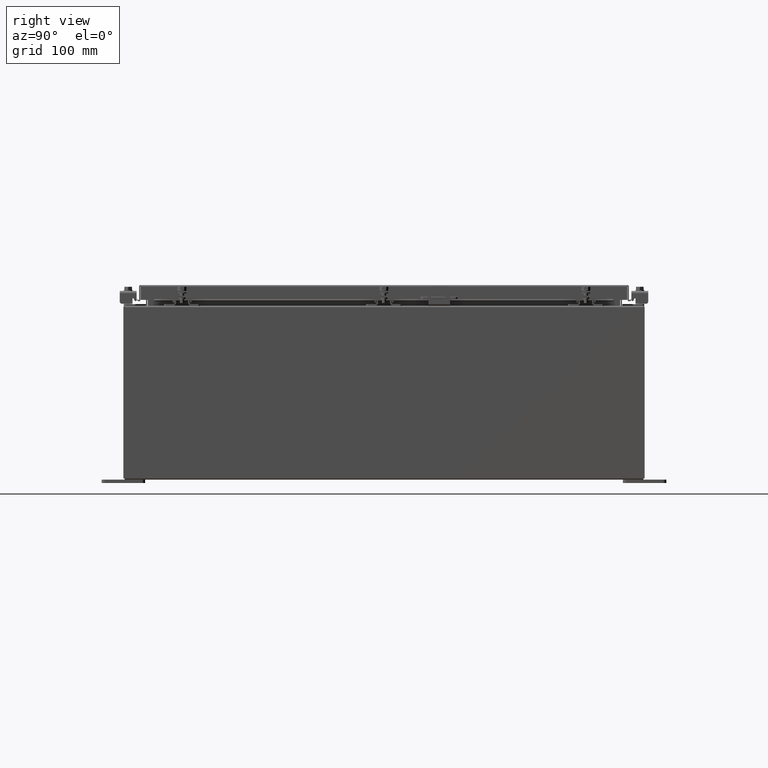
[diagram: clean part render]
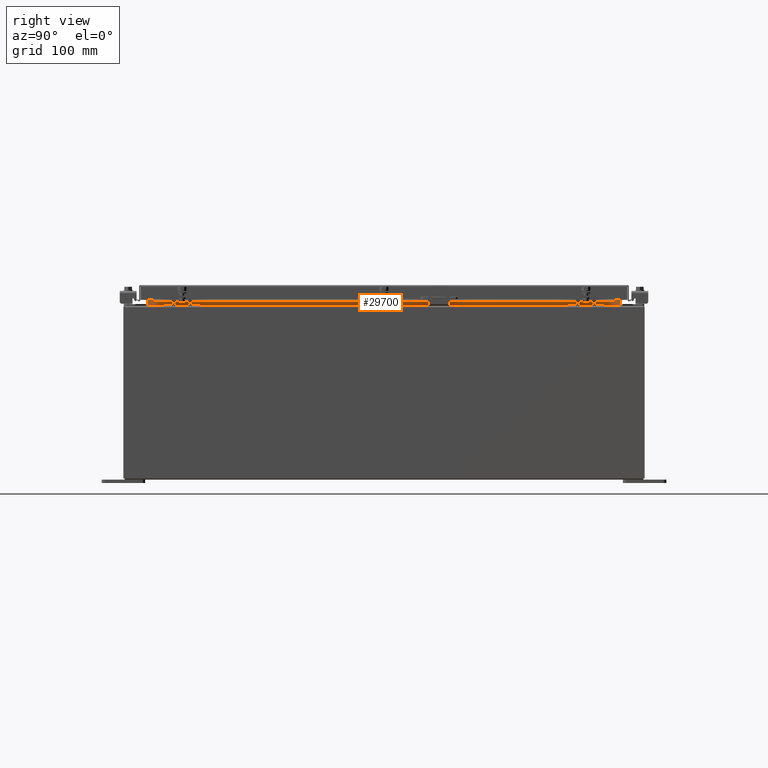
[diagram: same view with one face highlighted and labeled with its STEP entity id]
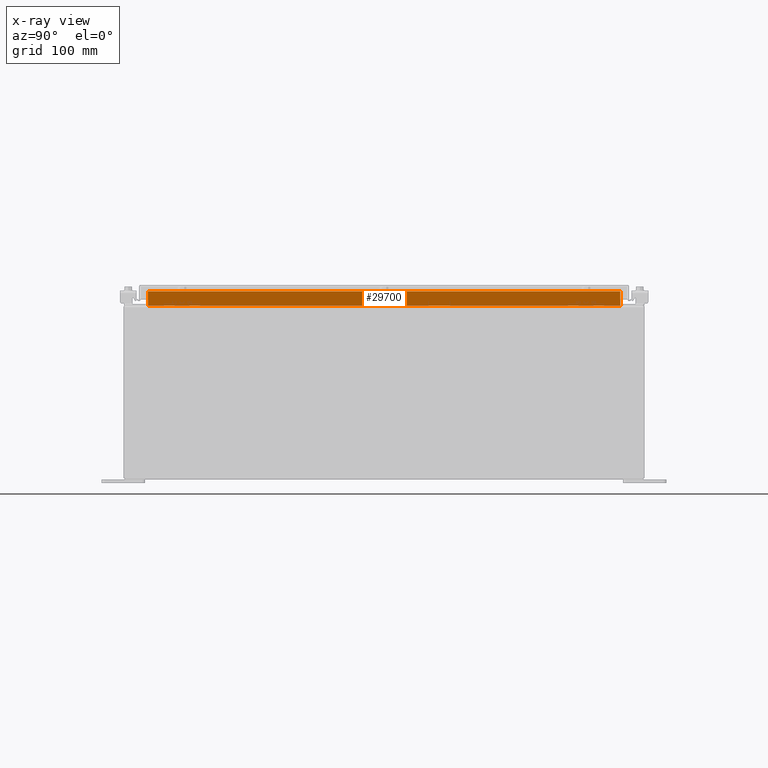
[diagram: x-ray of the same camera — body ghosted, the highlighted face saturated]
A machine part, right view. The second image highlights one B-rep face of the part: STEP entity #29700.
The next image is the same camera in x-ray: the body ghosted, the highlighted face saturated — about 0% of this face is hidden behind the body in this view.
In plain terms, the highlighted planar face has unit normal (1, 0, -0).
Its self-contained STEP definition (entity closure, byte-faithful):
#529 = EDGE_CURVE ( 'NONE', #9374, #34676, #11574, .T. ) ;
#1892 = LINE ( 'NONE', #2222, #8810 ) ;
#2222 = CARTESIAN_POINT ( 'NONE',  ( 10.69970000000003400, 13.59374999999999800, 9.938300000000008800 ) ) ;
#2988 = ORIENTED_EDGE ( 'NONE', *, *, #34339, .F. ) ;
#3452 = VERTEX_POINT ( 'NONE', #23707 ) ;
#4767 = CARTESIAN_POINT ( 'NONE',  ( 10.69970000000003200, 13.59374999999999300, 10.76290000000001100 ) ) ;
#8154 = DIRECTION ( 'NONE',  ( 8.038541222736223700E-017, -1.000000000000000000, 2.411562366820867200E-016 ) ) ;
#8373 = DIRECTION ( 'NONE',  ( 0.0000000000000000000, 1.000000000000000000, 0.0000000000000000000 ) ) ;
#8810 = VECTOR ( 'NONE', #8154, 39.37007874015748100 ) ;
#9374 = VERTEX_POINT ( 'NONE', #4767 ) ;
#11121 = EDGE_CURVE ( 'NONE', #34676, #3452, #1892, .T. ) ;
#11450 = DIRECTION ( 'NONE',  ( 2.361913319930198800E-015, -0.0000000000000000000, 1.000000000000000000 ) ) ;
#11574 = LINE ( 'NONE', #11675, #34886 ) ;
#11629 = EDGE_CURVE ( 'NONE', #37292, #9374, #14684, .T. ) ;
#11675 = CARTESIAN_POINT ( 'NONE',  ( 10.69970000000003200, 13.59374999999999800, 9.925300000000008900 ) ) ;
#13182 = EDGE_LOOP ( 'NONE', ( #30838, #19271, #2988, #14954 ) ) ;
#13565 = CARTESIAN_POINT ( 'NONE',  ( 10.69970000000003400, -13.59374999999999800, 10.76290000000001100 ) ) ;
#14684 = LINE ( 'NONE', #25869, #22472 ) ;
#14954 = ORIENTED_EDGE ( 'NONE', *, *, #11121, .F. ) ;
#15398 = AXIS2_PLACEMENT_3D ( 'NONE', #17105, #34759, #17233 ) ;
#17105 = CARTESIAN_POINT ( 'NONE',  ( 10.69970000000000900, 0.0000000000000000000, -2.526959394139443400E-014 ) ) ;
#17233 = DIRECTION ( 'NONE',  ( -2.361913319930193300E-015, 0.0000000000000000000, -1.000000000000000000 ) ) ;
#19271 = ORIENTED_EDGE ( 'NONE', *, *, #11629, .F. ) ;
#20245 = FACE_OUTER_BOUND ( 'NONE', #13182, .T. ) ;
#22472 = VECTOR ( 'NONE', #8373, 39.37007874015748100 ) ;
#23040 = CARTESIAN_POINT ( 'NONE',  ( 10.69970000000003400, -13.59374999999999800, 10.85060000000001100 ) ) ;
#23707 = CARTESIAN_POINT ( 'NONE',  ( 10.69970000000003200, -13.59375000000000000, 9.938300000000010600 ) ) ;
#25869 = CARTESIAN_POINT ( 'NONE',  ( 10.69970000000003200, -13.59374999999999300, 10.76290000000001100 ) ) ;
#27476 = CARTESIAN_POINT ( 'NONE',  ( 10.69970000000003200, 13.59375000000000000, 9.938300000000010600 ) ) ;
#29700 = ADVANCED_FACE ( 'NONE', ( #20245 ), #31846, .T. ) ;
#30081 = VECTOR ( 'NONE', #11450, 39.37007874015748100 ) ;
#30838 = ORIENTED_EDGE ( 'NONE', *, *, #529, .F. ) ;
#31846 = PLANE ( 'NONE',  #15398 ) ;
#32114 = DIRECTION ( 'NONE',  ( -2.361913319930193300E-015, -0.0000000000000000000, -1.000000000000000000 ) ) ;
#34339 = EDGE_CURVE ( 'NONE', #3452, #37292, #37864, .T. ) ;
#34676 = VERTEX_POINT ( 'NONE', #27476 ) ;
#34759 = DIRECTION ( 'NONE',  ( 1.000000000000000000, 0.0000000000000000000, -2.361913319930193300E-015 ) ) ;
#34886 = VECTOR ( 'NONE', #32114, 39.37007874015748100 ) ;
#37292 = VERTEX_POINT ( 'NONE', #13565 ) ;
#37864 = LINE ( 'NONE', #23040, #30081 ) ;